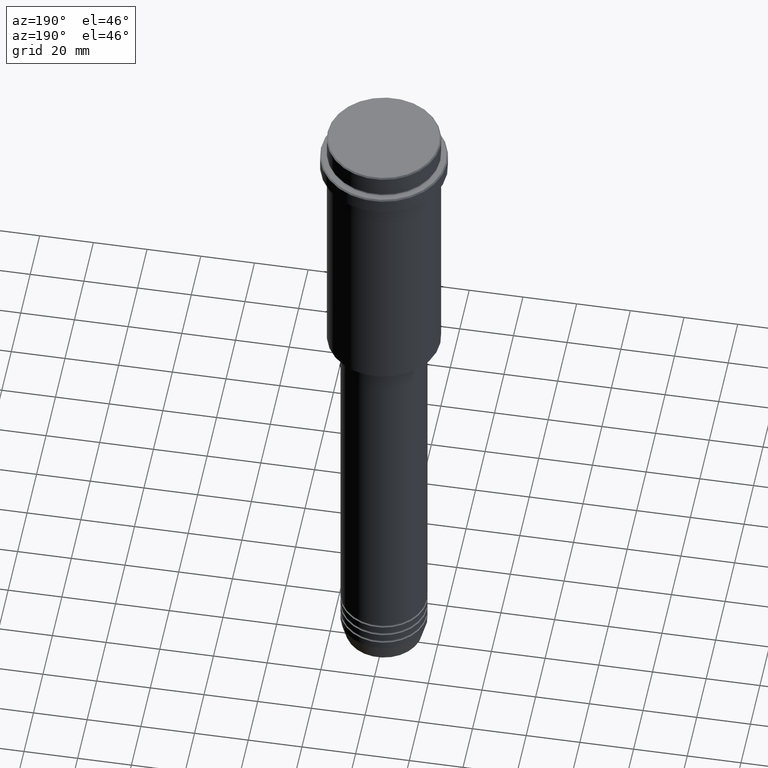
[diagram: clean part render]
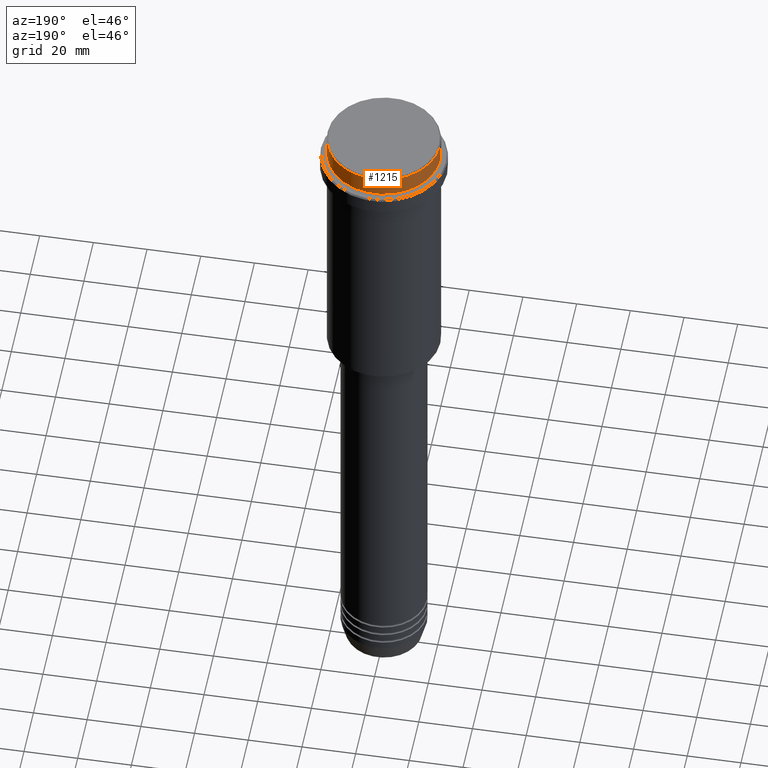
[diagram: same view with one face highlighted and labeled with its STEP entity id]
A machine part, auxiliary view. The second image highlights one B-rep face of the part: STEP entity #1215.
In plain terms, the highlighted cylindrical surface (partial cylindrical patch) has radius 21 mm, axis along (-0, -0, 1).
Its self-contained STEP definition (entity closure, byte-faithful):
#5 = AXIS2_PLACEMENT_3D ( 'NONE', #720, #619, #941 ) ;
#10 = AXIS2_PLACEMENT_3D ( 'NONE', #821, #386, #468 ) ;
#37 = DIRECTION ( 'NONE',  ( -0.000000000000000000, -0.000000000000000000, 1.000000000000000000 ) ) ;
#58 = FACE_OUTER_BOUND ( 'NONE', #192, .T. ) ;
#116 = ORIENTED_EDGE ( 'NONE', *, *, #785, .T. ) ;
#117 = VECTOR ( 'NONE', #37, 1000.000000000000000 ) ;
#120 = DIRECTION ( 'NONE',  ( 1.000000000000000000, 0.000000000000000000, 0.000000000000000000 ) ) ;
#192 = EDGE_LOOP ( 'NONE', ( #265, #1191, #116, #851 ) ) ;
#230 = EDGE_CURVE ( 'NONE', #550, #1304, #683, .T. ) ;
#265 = ORIENTED_EDGE ( 'NONE', *, *, #309, .T. ) ;
#269 = DIRECTION ( 'NONE',  ( -0.000000000000000000, -0.000000000000000000, 1.000000000000000000 ) ) ;
#309 = EDGE_CURVE ( 'NONE', #550, #465, #761, .T. ) ;
#329 = CARTESIAN_POINT ( 'NONE',  ( 0.000000000000000000, 0.000000000000000000, -0.4999999999999276135 ) ) ;
#378 = CARTESIAN_POINT ( 'NONE',  ( 21.00000000000000000, 0.000000000000000000, -0.4999999999999276135 ) ) ;
#386 = DIRECTION ( 'NONE',  ( -0.000000000000000000, -0.000000000000000000, 1.000000000000000000 ) ) ;
#392 = VECTOR ( 'NONE', #269, 1000.000000000000000 ) ;
#410 = CARTESIAN_POINT ( 'NONE',  ( -21.00000000000000000, 2.571758278209441661E-15, -0.4999999999999276135 ) ) ;
#465 = VERTEX_POINT ( 'NONE', #898 ) ;
#468 = DIRECTION ( 'NONE',  ( 1.000000000000000000, 0.000000000000000000, 0.000000000000000000 ) ) ;
#550 = VERTEX_POINT ( 'NONE', #950 ) ;
#619 = DIRECTION ( 'NONE',  ( -0.000000000000000000, -0.000000000000000000, 1.000000000000000000 ) ) ;
#683 = LINE ( 'NONE', #1139, #117 ) ;
#714 = CIRCLE ( 'NONE', #921, 21.00000000000000000 ) ;
#720 = CARTESIAN_POINT ( 'NONE',  ( 0.000000000000000000, 0.000000000000000000, -7.999999999999998224 ) ) ;
#761 = CIRCLE ( 'NONE', #5, 21.00000000000000000 ) ;
#785 = EDGE_CURVE ( 'NONE', #1376, #1304, #714, .T. ) ;
#821 = CARTESIAN_POINT ( 'NONE',  ( 0.000000000000000000, 0.000000000000000000, 0.000000000000000000 ) ) ;
#851 = ORIENTED_EDGE ( 'NONE', *, *, #230, .F. ) ;
#870 = EDGE_CURVE ( 'NONE', #465, #1376, #1372, .T. ) ;
#898 = CARTESIAN_POINT ( 'NONE',  ( -21.00000000000000000, 2.571758278209441661E-15, -7.999999999999998224 ) ) ;
#921 = AXIS2_PLACEMENT_3D ( 'NONE', #329, #987, #120 ) ;
#941 = DIRECTION ( 'NONE',  ( 1.000000000000000000, 0.000000000000000000, 0.000000000000000000 ) ) ;
#950 = CARTESIAN_POINT ( 'NONE',  ( 21.00000000000000000, 0.000000000000000000, -7.999999999999998224 ) ) ;
#987 = DIRECTION ( 'NONE',  ( 0.000000000000000000, 0.000000000000000000, -1.000000000000000000 ) ) ;
#1031 = CARTESIAN_POINT ( 'NONE',  ( -21.00000000000000000, 2.571758278209441661E-15, 0.000000000000000000 ) ) ;
#1041 = CYLINDRICAL_SURFACE ( 'NONE', #10, 21.00000000000000000 ) ;
#1139 = CARTESIAN_POINT ( 'NONE',  ( 21.00000000000000000, 0.000000000000000000, 0.000000000000000000 ) ) ;
#1191 = ORIENTED_EDGE ( 'NONE', *, *, #870, .T. ) ;
#1215 = ADVANCED_FACE ( 'NONE', ( #58 ), #1041, .T. ) ;
#1304 = VERTEX_POINT ( 'NONE', #378 ) ;
#1372 = LINE ( 'NONE', #1031, #392 ) ;
#1376 = VERTEX_POINT ( 'NONE', #410 ) ;